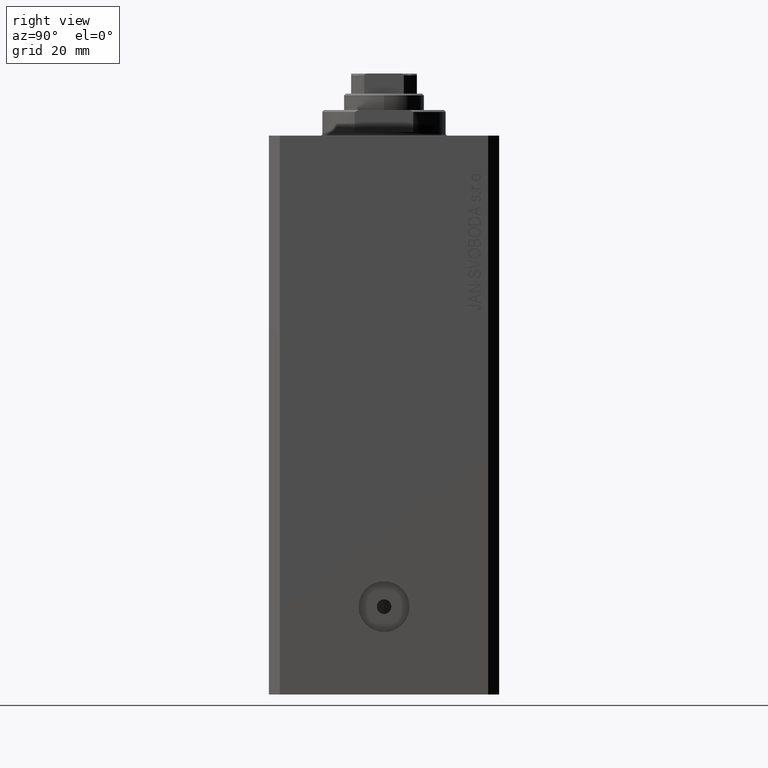
[diagram: clean part render]
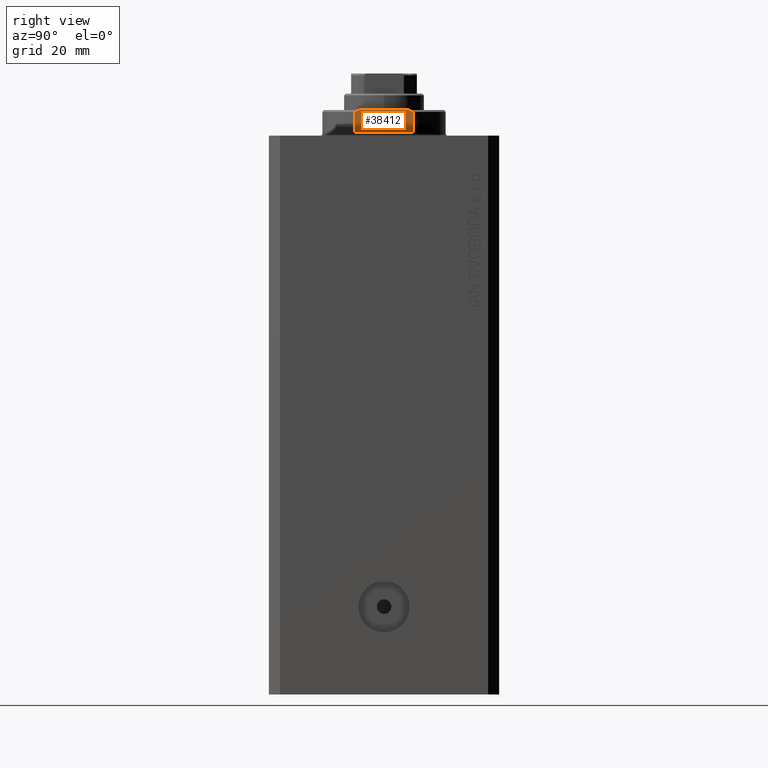
[diagram: same view with one face highlighted and labeled with its STEP entity id]
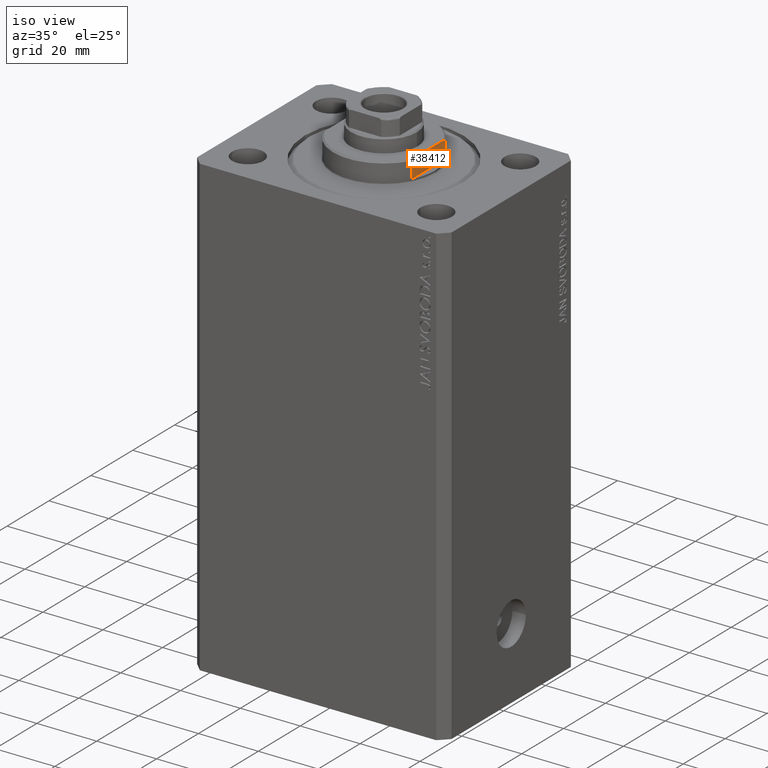
[diagram: same view with one face highlighted and labeled with its STEP entity id]
A machine part, right view. The second image highlights one B-rep face of the part: STEP entity #38412.
A second angle (iso view) of the same face is appended — the face is thin or edge-on in the first view.
In plain terms, the highlighted planar face has unit normal (-1, 0, 0).
Its self-contained STEP definition (entity closure, byte-faithful):
#258 = VERTEX_POINT ( 'NONE', #39969 ) ;
#374 = ORIENTED_EDGE ( 'NONE', *, *, #25721, .F. ) ;
#1373 = DIRECTION ( 'NONE',  ( 0.000000000000000000, 0.000000000000000000, -1.000000000000000000 ) ) ;
#1666 = EDGE_CURVE ( 'NONE', #23828, #16061, #15583, .T. ) ;
#2224 = VERTEX_POINT ( 'NONE', #14977 ) ;
#2394 = DIRECTION ( 'NONE',  ( -0.000000000000000000, -1.000000000000000000, -0.000000000000000000 ) ) ;
#2485 = VECTOR ( 'NONE', #2394, 1000.000000000000000 ) ;
#3068 = DIRECTION ( 'NONE',  ( 0.000000000000000000, 0.000000000000000000, -1.000000000000000000 ) ) ;
#3507 = CARTESIAN_POINT ( 'NONE',  ( -15.00000000000000000, -42.42640687119285303, -1.000000000000000000 ) ) ;
#5453 = EDGE_CURVE ( 'NONE', #2224, #23828, #34417, .T. ) ;
#5779 = CARTESIAN_POINT ( 'NONE',  ( -15.00000000000000000, 7.628315461082496363, -6.674910371255315056 ) ) ;
#6374 = ORIENTED_EDGE ( 'NONE', *, *, #10045, .T. ) ;
#6893 = PLANE ( 'NONE',  #26911 ) ;
#8107 = DIRECTION ( 'NONE',  ( -0.000000000000000000, -0.000000000000000000, 1.000000000000000000 ) ) ;
#8361 = EDGE_CURVE ( 'NONE', #258, #16061, #36624, .T. ) ;
#9455 = EDGE_CURVE ( 'NONE', #19407, #258, #30156, .T. ) ;
#10045 = EDGE_CURVE ( 'NONE', #10506, #19407, #18964, .T. ) ;
#10506 = VERTEX_POINT ( 'NONE', #11284 ) ;
#11284 = CARTESIAN_POINT ( 'NONE',  ( -15.00000000000000000, 8.000000000000001776, -6.500000000000013323 ) ) ;
#12313 = VECTOR ( 'NONE', #8107, 1000.000000000000000 ) ;
#14977 = CARTESIAN_POINT ( 'NONE',  ( -14.99999999999999645, 8.000000000000003553, -1.000000000000000000 ) ) ;
#15163 = CARTESIAN_POINT ( 'NONE',  ( -14.99999999999999645, 6.873863542433817031, -7.000000000000000000 ) ) ;
#15583 = LINE ( 'NONE', #39257, #25451 ) ;
#15730 = CARTESIAN_POINT ( 'NONE',  ( -15.00000000000000000, 8.000000000000001776, -6.500000000000013323 ) ) ;
#16061 = VERTEX_POINT ( 'NONE', #36026 ) ;
#18076 = ORIENTED_EDGE ( 'NONE', *, *, #9455, .T. ) ;
#18964 = B_SPLINE_CURVE_WITH_KNOTS ( 'NONE', 3,
 ( #15730, #5779, #19569, #38034 ),
 .UNSPECIFIED., .F., .F.,
 ( 4, 4 ),
 ( 0.03336039268696996268, 0.03459498301323797598 ),
 .UNSPECIFIED. ) ;
#19407 = VERTEX_POINT ( 'NONE', #15163 ) ;
#19569 = CARTESIAN_POINT ( 'NONE',  ( -15.00000000000000000, 7.253126193285960532, -6.842000017654668476 ) ) ;
#21505 = ORIENTED_EDGE ( 'NONE', *, *, #1666, .F. ) ;
#23828 = VERTEX_POINT ( 'NONE', #38422 ) ;
#24058 = DIRECTION ( 'NONE',  ( -0.000000000000000000, -1.000000000000000000, -0.000000000000000000 ) ) ;
#24400 = LINE ( 'NONE', #25278, #12313 ) ;
#24602 = ORIENTED_EDGE ( 'NONE', *, *, #5453, .F. ) ;
#25278 = CARTESIAN_POINT ( 'NONE',  ( -15.00000000000000000, 8.000000000000001776, -7.000000000000000000 ) ) ;
#25451 = VECTOR ( 'NONE', #1373, 1000.000000000000000 ) ;
#25721 = EDGE_CURVE ( 'NONE', #10506, #2224, #24400, .T. ) ;
#26911 = AXIS2_PLACEMENT_3D ( 'NONE', #40964, #34212, #3068 ) ;
#30156 = LINE ( 'NONE', #43868, #2485 ) ;
#30204 = CARTESIAN_POINT ( 'NONE',  ( -14.99999999999999645, -6.873863542433817031, -7.000000000000000000 ) ) ;
#34017 = CARTESIAN_POINT ( 'NONE',  ( -15.00000000000000000, -8.000000000000001776, -6.500000000000014211 ) ) ;
#34212 = DIRECTION ( 'NONE',  ( 1.000000000000000000, 0.000000000000000000, 0.000000000000000000 ) ) ;
#34417 = LINE ( 'NONE', #3507, #40627 ) ;
#34538 = ORIENTED_EDGE ( 'NONE', *, *, #8361, .T. ) ;
#35872 = EDGE_LOOP ( 'NONE', ( #6374, #18076, #34538, #21505, #24602, #374 ) ) ;
#36026 = CARTESIAN_POINT ( 'NONE',  ( -15.00000000000000000, -8.000000000000001776, -6.500000000000014211 ) ) ;
#36624 = B_SPLINE_CURVE_WITH_KNOTS ( 'NONE', 3,
 ( #30204, #44593, #43691, #34017 ),
 .UNSPECIFIED., .F., .F.,
 ( 4, 4 ),
 ( 0.04875332532859021767, 0.04998905627745620778 ),
 .UNSPECIFIED. ) ;
#38034 = CARTESIAN_POINT ( 'NONE',  ( -14.99999999999999645, 6.873863542433817031, -7.000000000000000000 ) ) ;
#38412 = ADVANCED_FACE ( 'NONE', ( #41406 ), #6893, .F. ) ;
#38422 = CARTESIAN_POINT ( 'NONE',  ( -14.99999999999999645, -8.000000000000003553, -1.000000000000000000 ) ) ;
#39257 = CARTESIAN_POINT ( 'NONE',  ( -15.00000000000000000, -8.000000000000001776, -7.000000000000000000 ) ) ;
#39969 = CARTESIAN_POINT ( 'NONE',  ( -14.99999999999999645, -6.873863542433817031, -7.000000000000000000 ) ) ;
#40627 = VECTOR ( 'NONE', #24058, 1000.000000000000000 ) ;
#40964 = CARTESIAN_POINT ( 'NONE',  ( -15.00000000000000000, -42.42640687119285303, -1.000000000000000000 ) ) ;
#41406 = FACE_OUTER_BOUND ( 'NONE', #35872, .T. ) ;
#43691 = CARTESIAN_POINT ( 'NONE',  ( -15.00000000000000000, -7.629305121525828071, -6.674444648693746984 ) ) ;
#43868 = CARTESIAN_POINT ( 'NONE',  ( -15.00000000000000000, -42.42640687119285303, -7.000000000000000000 ) ) ;
#44593 = CARTESIAN_POINT ( 'NONE',  ( -15.00000000000000000, -7.254193676168162241, -6.841555306644511170 ) ) ;